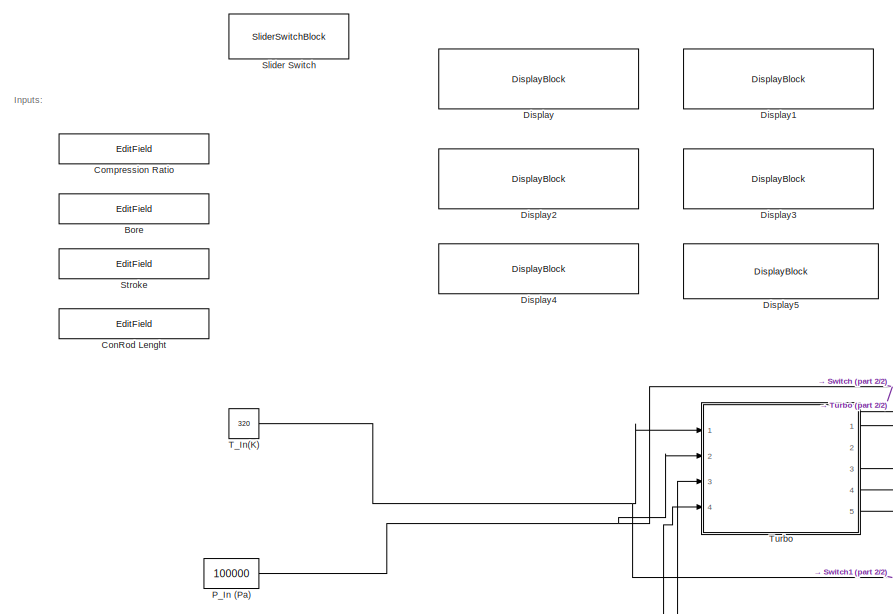
[diagram: root canvas - part 1/2, middle left region]
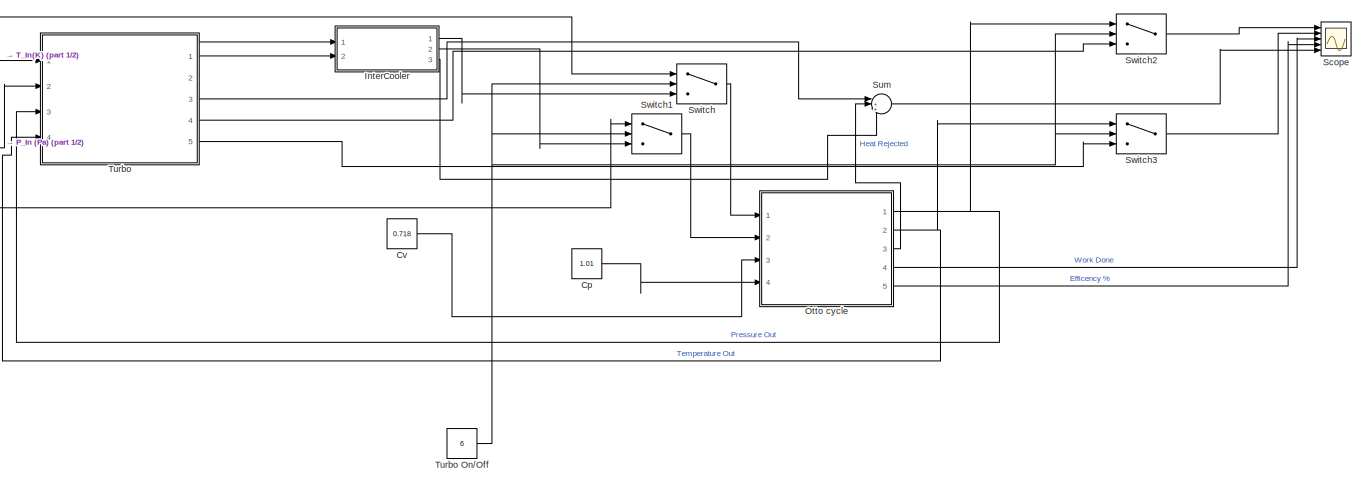
[diagram: root canvas - part 2/2, bottom center region]
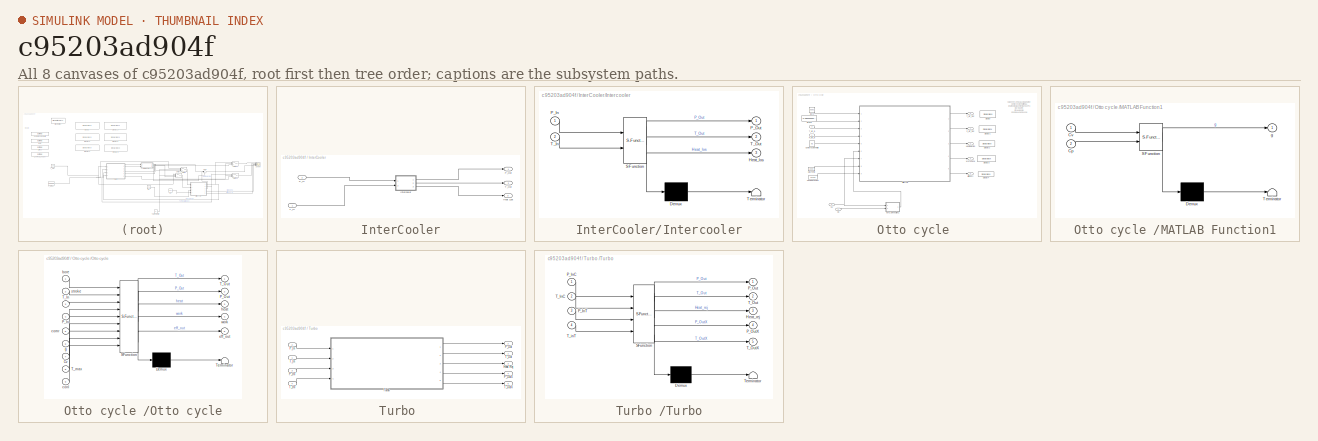
[diagram: thumbnail index - all 8 canvases of the model, root first then tree order]
MODEL slx_c95203ad904f
KIND model
CONFIG AbsTol = auto
CONFIG EnableMultiTasking = off
CONFIG FixedStep = auto
CONFIG MaxStep = auto
CONFIG MinStep = auto
CONFIG RelTol = 1e-3
CONFIG SampleTimeConstraint = Unconstrained
CONFIG Solver = VariableStepAuto
CONFIG SolverName = VariableStepAuto
CONFIG StartTime = 0.0
CONFIG StopTime = 0
BLOCK [EditField] Bore
  Alignment = Center
  LabelPosition = Hide
  WebBlockId = 61
BLOCK [EditField] Compression Ratio 
  Alignment = Center
  LabelPosition = Hide
  WebBlockId = 60
BLOCK [EditField] ConRod Lenght
  Alignment = Center
  LabelPosition = Hide
  WebBlockId = 93
BLOCK [Constant] Cp 
  Value = 1.01
BLOCK [Constant] Cv
  Value = 0.718
BLOCK [DisplayBlock] Display
  WebBlockId = 84
BLOCK [DisplayBlock] Display1
  WebBlockId = 85
BLOCK [DisplayBlock] Display2
  WebBlockId = 86
BLOCK [DisplayBlock] Display3
  WebBlockId = 87
BLOCK [DisplayBlock] Display4
  WebBlockId = 88
BLOCK [DisplayBlock] Display5
  LabelPosition = Hide
  WebBlockId = 89
BLOCK [SubSystem] InterCooler
  Ports = [2, 3]
  RequestExecContextInheritance = off
BLOCK [Outport] InterCooler/Heat Lost 
  IconDisplay = Port number
  Port = 3
BLOCK [SubSystem] InterCooler/Intercooler
  ErrorFcn = Stateflow.Translate.translate
  PermitHierarchicalResolution = ExplicitOnly
  Ports = [2, 3]
  RequestExecContextInheritance = off
  SFBlockType = MATLAB Function
  TreatAsAtomicUnit = on
BLOCK [Demux] InterCooler/Intercooler/ Demux 
  Outputs = 1
  Ports = [1, 1]
BLOCK [S-Function] InterCooler/Intercooler/ SFunction 
  EnableBusSupport = on
  FunctionName = sf_sfun
  PortCounts = [2 4]
  Ports = [2, 4]
  SFcnIsStateOwnerBlock = off
  SFunctionDeploymentMode = off
  Tag = Stateflow S-Function Engine 4
BLOCK [Terminator] InterCooler/Intercooler/ Terminator 
BLOCK [Outport] InterCooler/Intercooler/Heat_los
  IconDisplay = Port number
  Port = 3
BLOCK [Inport] InterCooler/Intercooler/P_In
  IconDisplay = Port number
BLOCK [Outport] InterCooler/Intercooler/P_Out
  IconDisplay = Port number
BLOCK [Inport] InterCooler/Intercooler/T_In
  IconDisplay = Port number
  Port = 2
BLOCK [Outport] InterCooler/Intercooler/T_Out
  IconDisplay = Port number
  Port = 2
BLOCK [Inport] InterCooler/P_In
  IconDisplay = Port number
  Port = 2
BLOCK [Outport] InterCooler/P_Out
  IconDisplay = Port number
BLOCK [Inport] InterCooler/T_In
  IconDisplay = Port number
BLOCK [Outport] InterCooler/T_Out
  IconDisplay = Port number
  Port = 2
BLOCK [SubSystem] Otto cycle 
  Ports = [4, 5]
  RequestExecContextInheritance = off
BLOCK [Constant] Otto cycle /Bore 
  Value = 0.083
BLOCK [Constant] Otto cycle /Compression Ratio 
  Value = 9.5
BLOCK [Constant] Otto cycle /ConRod Lenght
  Value = 0.1328
BLOCK [Inport] Otto cycle /Cp 
  IconDisplay = Port number
  Port = 4
BLOCK [Inport] Otto cycle /Cv
  IconDisplay = Port number
  Port = 3
BLOCK [DisplayBlock] Otto cycle /Display
  LabelPosition = Hide
  WebBlockId = 50
BLOCK [DisplayBlock] Otto cycle /Display1
  LabelPosition = Hide
  WebBlockId = 51
BLOCK [DisplayBlock] Otto cycle /Display2
  LabelPosition = Hide
  WebBlockId = 55
BLOCK [DisplayBlock] Otto cycle /Display3
  LabelPosition = Hide
  WebBlockId = 56
BLOCK [DisplayBlock] Otto cycle /Display4
  LabelPosition = Hide
  WebBlockId = 57
BLOCK [Outport] Otto cycle /Efficency
  IconDisplay = Port number
  Port = 5
BLOCK [Outport] Otto cycle /Heat Rejected 
  IconDisplay = Port number
  Port = 3
BLOCK [SubSystem] Otto cycle /MATLAB Function1
  ErrorFcn = Stateflow.Translate.translate
  PermitHierarchicalResolution = ExplicitOnly
  Ports = [2, 1]
  RequestExecContextInheritance = off
  SFBlockType = MATLAB Function
  TreatAsAtomicUnit = on
BLOCK [Demux] Otto cycle /MATLAB Function1/ Demux 
  Outputs = 1
  Ports = [1, 1]
BLOCK [S-Function] Otto cycle /MATLAB Function1/ SFunction 
  EnableBusSupport = on
  FunctionName = sf_sfun
  PortCounts = [2 2]
  Ports = [2, 2]
  SFcnIsStateOwnerBlock = off
  SFunctionDeploymentMode = off
  Tag = Stateflow S-Function Engine 1
BLOCK [Terminator] Otto cycle /MATLAB Function1/ Terminator 
BLOCK [Inport] Otto cycle /MATLAB Function1/Cp
  IconDisplay = Port number
  Port = 2
BLOCK [Inport] Otto cycle /MATLAB Function1/Cv
  IconDisplay = Port number
BLOCK [Outport] Otto cycle /MATLAB Function1/g
  IconDisplay = Port number
BLOCK [Constant] Otto cycle /Max Temp 
  Value = 2000
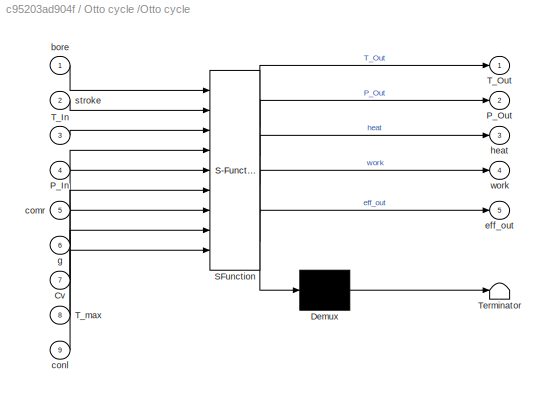
BLOCK [SubSystem] Otto cycle /Otto cycle
  ErrorFcn = Stateflow.Translate.translate
  PermitHierarchicalResolution = ExplicitOnly
  Ports = [9, 5]
  RequestExecContextInheritance = off
  SFBlockType = MATLAB Function
  TreatAsAtomicUnit = on
BLOCK [Demux] Otto cycle /Otto cycle/ Demux 
  Outputs = 1
  Ports = [1, 1]
BLOCK [S-Function] Otto cycle /Otto cycle/ SFunction 
  EnableBusSupport = on
  FunctionName = sf_sfun
  PortCounts = [9 6]
  Ports = [9, 6]
  SFcnIsStateOwnerBlock = off
  SFunctionDeploymentMode = off
  Tag = Stateflow S-Function Engine 2
BLOCK [Terminator] Otto cycle /Otto cycle/ Terminator 
BLOCK [Inport] Otto cycle /Otto cycle/Cv
  IconDisplay = Port number
  Port = 7
BLOCK [Inport] Otto cycle /Otto cycle/P_In
  IconDisplay = Port number
  Port = 4
BLOCK [Outport] Otto cycle /Otto cycle/P_Out
  IconDisplay = Port number
  Port = 2
BLOCK [Inport] Otto cycle /Otto cycle/T_In
  IconDisplay = Port number
  Port = 3
BLOCK [Outport] Otto cycle /Otto cycle/T_Out
  IconDisplay = Port number
BLOCK [Inport] Otto cycle /Otto cycle/T_max
  IconDisplay = Port number
  Port = 8
BLOCK [Inport] Otto cycle /Otto cycle/bore
  IconDisplay = Port number
BLOCK [Inport] Otto cycle /Otto cycle/comr
  IconDisplay = Port number
  Port = 5
BLOCK [Inport] Otto cycle /Otto cycle/conl
  IconDisplay = Port number
  Port = 9
BLOCK [Outport] Otto cycle /Otto cycle/eff_out
  IconDisplay = Port number
  Port = 5
BLOCK [Inport] Otto cycle /Otto cycle/g
  IconDisplay = Port number
  Port = 6
BLOCK [Outport] Otto cycle /Otto cycle/heat
  IconDisplay = Port number
  Port = 3
BLOCK [Inport] Otto cycle /Otto cycle/stroke
  IconDisplay = Port number
  Port = 2
BLOCK [Outport] Otto cycle /Otto cycle/work
  IconDisplay = Port number
  Port = 4
BLOCK [Inport] Otto cycle /P_air_In 
  IconDisplay = Port number
BLOCK [Outport] Otto cycle /P_air_Out 
  IconDisplay = Port number
BLOCK [Constant] Otto cycle /Stroke 
  Value = 0.08500000000000001
BLOCK [Inport] Otto cycle /T_air_In 
  IconDisplay = Port number
  Port = 2
BLOCK [Outport] Otto cycle /T_air_Out 
  IconDisplay = Port number
  Port = 2
BLOCK [Outport] Otto cycle /Work Done
  IconDisplay = Port number
  Port = 4
BLOCK [Constant] P_In (Pa) 
  Value = 100000
BLOCK [Scope] Scope
  Floating = off
  NumInputPorts = 5
  Ports = [5]
  ScopeSpecificationString = Simulink.scopes.TimeScopeBlockCfg('CurrentConfiguration', extmgr.ConfigurationSet(extmgr.Configuration('Core','General UI',true),extmgr.Configuration('Core','Source UI',true),extmgr.Configuration('Sources','WiredSimulink',true),extmgr.Configuration('Visuals','Time Domain',true),extmgr.Configuration('Tools','Plot Navigation',true),extmgr.Configuration('Tools','Measurements',true)),'Version','2018a'...<+1ch>
BLOCK [SliderSwitchBlock] Slider Switch
  WebBlockId = 64
BLOCK [EditField] Stroke 
  Alignment = Center
  LabelPosition = Hide
  WebBlockId = 62
BLOCK [Sum] Sum
  IconShape = round
  InputSameDT = off
  Inputs = |+++
  OutDataTypeStr = Inherit: Inherit via internal rule
  Ports = [3, 1]
  SaturateOnIntegerOverflow = off
BLOCK [Switch] Switch
  Criteria = u2 > Threshold
  InputSameDT = off
  SaturateOnIntegerOverflow = off
  Threshold = 5
BLOCK [Switch] Switch1
  Criteria = u2 > Threshold
  InputSameDT = off
  SaturateOnIntegerOverflow = off
  Threshold = 5
BLOCK [Switch] Switch2
  Criteria = u2 > Threshold
  InputSameDT = off
  SaturateOnIntegerOverflow = off
  Threshold = 5
BLOCK [Switch] Switch3
  Criteria = u2 > Threshold
  InputSameDT = off
  SaturateOnIntegerOverflow = off
  Threshold = 5
BLOCK [Constant] T_In(K) 
  Value = 320
BLOCK [SubSystem] Turbo 
  Ports = [4, 5]
  RequestExecContextInheritance = off
BLOCK [Outport] Turbo /Heat Rej 
  IconDisplay = Port number
  Port = 3
BLOCK [Inport] Turbo /P_In
  IconDisplay = Port number
  Port = 2
BLOCK [Inport] Turbo /P_InT
  IconDisplay = Port number
  Port = 3
BLOCK [Outport] Turbo /P_Out
  IconDisplay = Port number
  Port = 2
BLOCK [Outport] Turbo /P_OutX 
  IconDisplay = Port number
  Port = 4
BLOCK [Inport] Turbo /T_In
  IconDisplay = Port number
BLOCK [Inport] Turbo /T_InT
  IconDisplay = Port number
  Port = 4
BLOCK [Outport] Turbo /T_Out
  IconDisplay = Port number
BLOCK [Outport] Turbo /T_OutX
  IconDisplay = Port number
  Port = 5
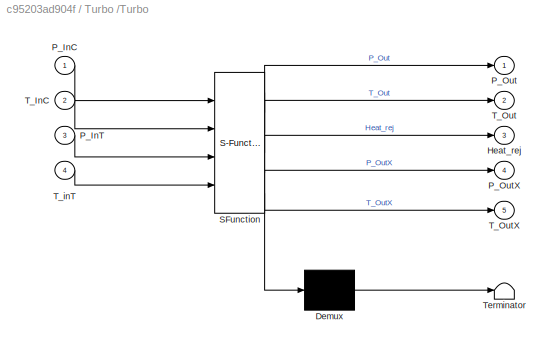
BLOCK [SubSystem] Turbo /Turbo
  ErrorFcn = Stateflow.Translate.translate
  PermitHierarchicalResolution = ExplicitOnly
  Ports = [4, 5]
  RequestExecContextInheritance = off
  SFBlockType = MATLAB Function
  TreatAsAtomicUnit = on
BLOCK [Demux] Turbo /Turbo/ Demux 
  Outputs = 1
  Ports = [1, 1]
BLOCK [S-Function] Turbo /Turbo/ SFunction 
  EnableBusSupport = on
  FunctionName = sf_sfun
  PortCounts = [4 6]
  Ports = [4, 6]
  SFcnIsStateOwnerBlock = off
  SFunctionDeploymentMode = off
  Tag = Stateflow S-Function Engine 3
BLOCK [Terminator] Turbo /Turbo/ Terminator 
BLOCK [Outport] Turbo /Turbo/Heat_rej
  IconDisplay = Port number
  Port = 3
BLOCK [Inport] Turbo /Turbo/P_InC
  IconDisplay = Port number
BLOCK [Inport] Turbo /Turbo/P_InT
  IconDisplay = Port number
  Port = 3
BLOCK [Outport] Turbo /Turbo/P_Out
  IconDisplay = Port number
BLOCK [Outport] Turbo /Turbo/P_OutX
  IconDisplay = Port number
  Port = 4
BLOCK [Inport] Turbo /Turbo/T_InC
  IconDisplay = Port number
  Port = 2
BLOCK [Outport] Turbo /Turbo/T_Out
  IconDisplay = Port number
  Port = 2
BLOCK [Outport] Turbo /Turbo/T_OutX
  IconDisplay = Port number
  Port = 5
BLOCK [Inport] Turbo /Turbo/T_inT
  IconDisplay = Port number
  Port = 4
BLOCK [Constant] Turbo On//Off 
  Value = 6
ANNOTATION (root): Inputs:
ANNOTATION Otto cycle : Values For 1998 1.8L MX5 Engine: Compression Ratio: 9.5:1 Engine displacement: 1840cm^3 Bore: 83mm Stroke: 85mm Con Rod Lengh: 0.1328
LINE Cp :1 -> Otto cycle :4
LINE Cv:1 -> Otto cycle :3
LINE InterCooler/Intercooler:1 -> InterCooler/P_Out:1
LINE InterCooler/Intercooler:2 -> InterCooler/T_Out:1
LINE InterCooler/Intercooler:3 -> InterCooler/Heat Lost :1
LINE InterCooler/P_In:1 -> InterCooler/Intercooler:1
LINE InterCooler/T_In:1 -> InterCooler/Intercooler:2
LINE InterCooler:1 -> Switch:3
LINE InterCooler:2 -> Switch1:3
LINE InterCooler:3 -> Sum:3
LINE Otto cycle /Bore :1 -> Otto cycle /Otto cycle:1
LINE Otto cycle /Compression Ratio :1 -> Otto cycle /Otto cycle:5
LINE Otto cycle /ConRod Lenght:1 -> Otto cycle /Otto cycle:9
LINE Otto cycle /Cp :1 -> Otto cycle /MATLAB Function1:2
NET Otto cycle /Cv:1 -> Otto cycle /MATLAB Function1:1, Otto cycle /Otto cycle:7
LINE Otto cycle /MATLAB Function1:1 -> Otto cycle /Otto cycle:6
LINE Otto cycle /Max Temp :1 -> Otto cycle /Otto cycle:8
LINE Otto cycle /Otto cycle:1 -> Otto cycle /T_air_Out :1
LINE Otto cycle /Otto cycle:2 -> Otto cycle /P_air_Out :1
LINE Otto cycle /Otto cycle:3 -> Otto cycle /Heat Rejected :1
LINE Otto cycle /Otto cycle:4 -> Otto cycle /Work Done:1
LINE Otto cycle /Otto cycle:5 -> Otto cycle /Efficency:1
LINE Otto cycle /P_air_In :1 -> Otto cycle /Otto cycle:4
LINE Otto cycle /Stroke :1 -> Otto cycle /Otto cycle:2
LINE Otto cycle /T_air_In :1 -> Otto cycle /Otto cycle:3
NET Otto cycle :1 -> Switch2:1, Turbo :3
NET Otto cycle :2 -> Switch3:1, Turbo :4
LINE Otto cycle :3 -> Sum:2
LINE Otto cycle :4 -> Scope:3
LINE Otto cycle :5 -> Scope:4
NET P_In (Pa) :1 -> Switch:1, Turbo :2
LINE Sum:1 -> Scope:5
LINE Switch1:1 -> Otto cycle :2
LINE Switch2:1 -> Scope:1
LINE Switch3:1 -> Scope:2
LINE Switch:1 -> Otto cycle :1
NET T_In(K) :1 -> Switch1:1, Turbo :1
LINE Turbo /P_In:1 -> Turbo /Turbo:1
LINE Turbo /P_InT:1 -> Turbo /Turbo:3
LINE Turbo /T_In:1 -> Turbo /Turbo:2
LINE Turbo /T_InT:1 -> Turbo /Turbo:4
LINE Turbo /Turbo:1 -> Turbo /P_Out:1
LINE Turbo /Turbo:2 -> Turbo /T_Out:1
LINE Turbo /Turbo:3 -> Turbo /Heat Rej :1
LINE Turbo /Turbo:4 -> Turbo /P_OutX :1
LINE Turbo /Turbo:5 -> Turbo /T_OutX:1
LINE Turbo :1 -> InterCooler:1
LINE Turbo :2 -> InterCooler:2
LINE Turbo :3 -> Sum:1
LINE Turbo :4 -> Switch2:3
LINE Turbo :5 -> Switch3:3
NET Turbo On//Off :1 -> Switch1:2, Switch2:2, Switch3:2, Switch:2
note: NET lines group one-source signal fan-out (src -> all destinations, sorted); 1:1 wires keep LINE
CHART Otto cycle 
/MATLAB Function1 states=1 transitions=1
  STATE_LABEL 'eML_blk_kernel()'
  STATE_LABEL "SCRIPT:\nfunction g = fcn(Cv,Cp)\nr1 = 1:1:10;\ng1 = 1.5;\ng2 = 1.4;\ng3 = 1.3;\ng = Cp/Cv;\ne1 = (1-(1./(r1)).^(g1-1))*100;\ne2 = (1-(1./(r1)).^(g2-1))*100;\ne3 = (1-(1./(r1)).^(g3-1))*100;\ne = (1-(1./(r1)).^(g-1))*100;\n\nfigure(2);\nhold on \nplot(r1,e1,'color','b');\nplot(r1,e2,'color','g');\nplot(r1,e3,'color','r');\nplot(r1,e,'color','black');\nxlabel('Compression Ratio');\nylabel('Efficiency');\ntitle('Theore...<+31ch>"
CHART Otto cycle 
/Otto cycle states=1 transitions=1
  STATE_LABEL 'eML_blk_kernel()'
  STATE_LABEL 'SCRIPT:\nfunction [T_Out,P_Out,heat,work,eff_out] = fcn(bore,stroke,T_In,P_In,comr,g,Cv,T_max,conl)\n\nv_swept = (pi/4)*bore^2*stroke;\nv_clearance = v_swept/(comr-1);\n\n%State 1\np1 = P_In;\nv1 = v_swept + v_clearance;\nt1 = T_In;\n\n%State 2 \nv2 = v_clearance;\np2 = (p1*v1)/v2;\nt2=t1*comr^(g-1);\n\n%State 3 \nv3 = v_clearance;\nt3 = 2300;\np3 = (p2*t3)/t2;\n\n%state 4 \nv4 = v1;\np4 = p3/((comr)^g);\nt4 = t3/(comr)^...<+405ch>'
CHART Turbo
/Turbo states=1 transitions=1
  STATE_LABEL 'eML_blk_kernel()'
  STATE_LABEL 'SCRIPT:\nfunction [P_Out,T_Out,Heat_rej,P_OutX,T_OutX] = fcn(P_InC,T_InC,P_InT,T_inT)\n\nP_Out = P_InC;\nT_Out = T_InC;\nHeat_rej = 5;\nP_OutX = P_InT;\nT_OutX = T_InT;'
CHART InterCooler/Intercooler states=1 transitions=1
  STATE_LABEL 'eML_blk_kernel()'
  STATE_LABEL 'SCRIPT:\nfunction [P_Out,T_Out,Heat_los]= fcn(P_In,T_In)\n\nP_Out = P_In;\nT_Out = T_In/2;\nHeat_los = 5;\n'
